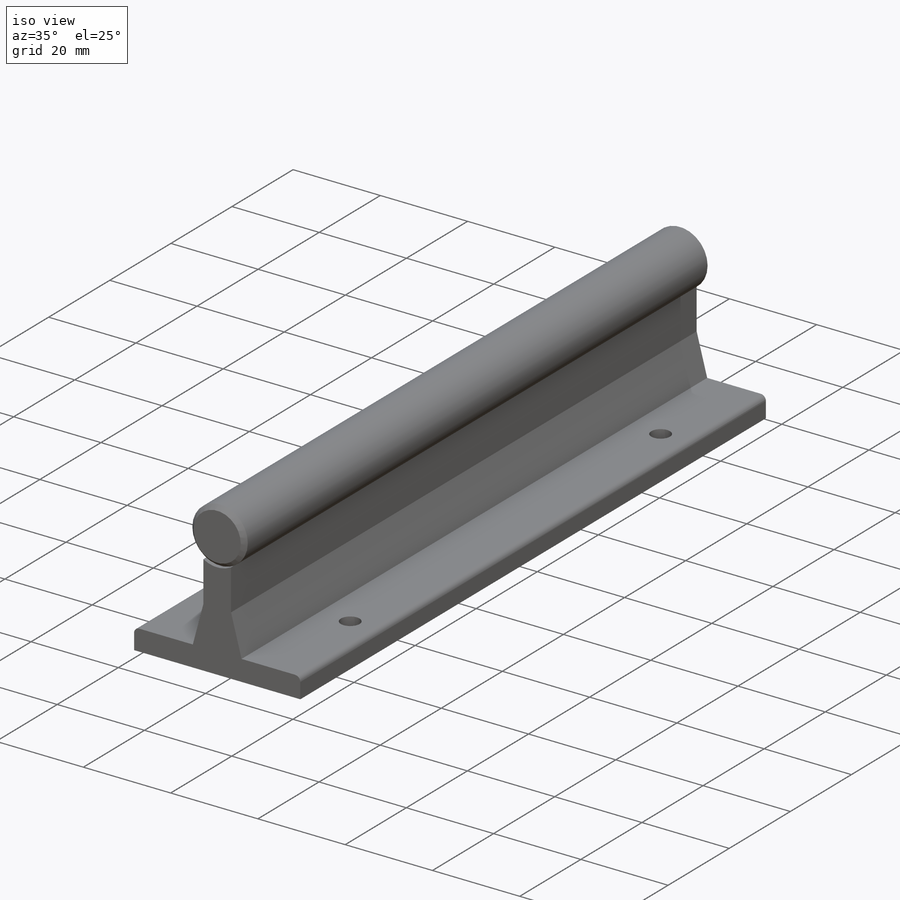
[diagram: iso view]
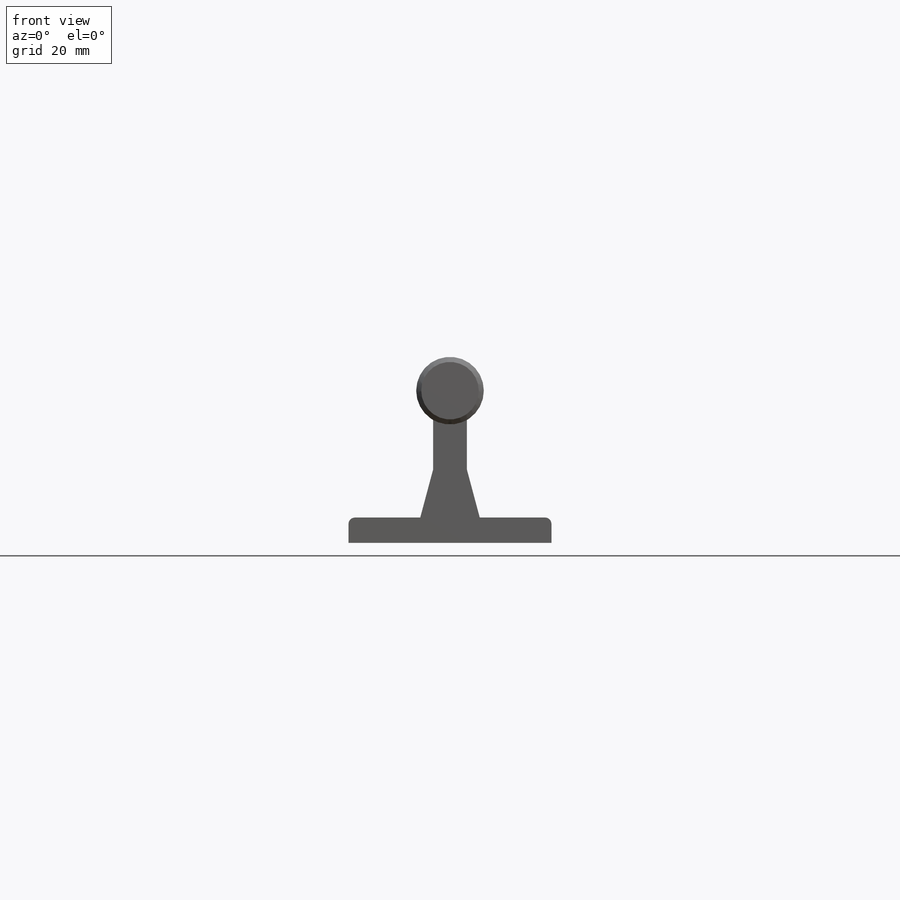
[diagram: front view]
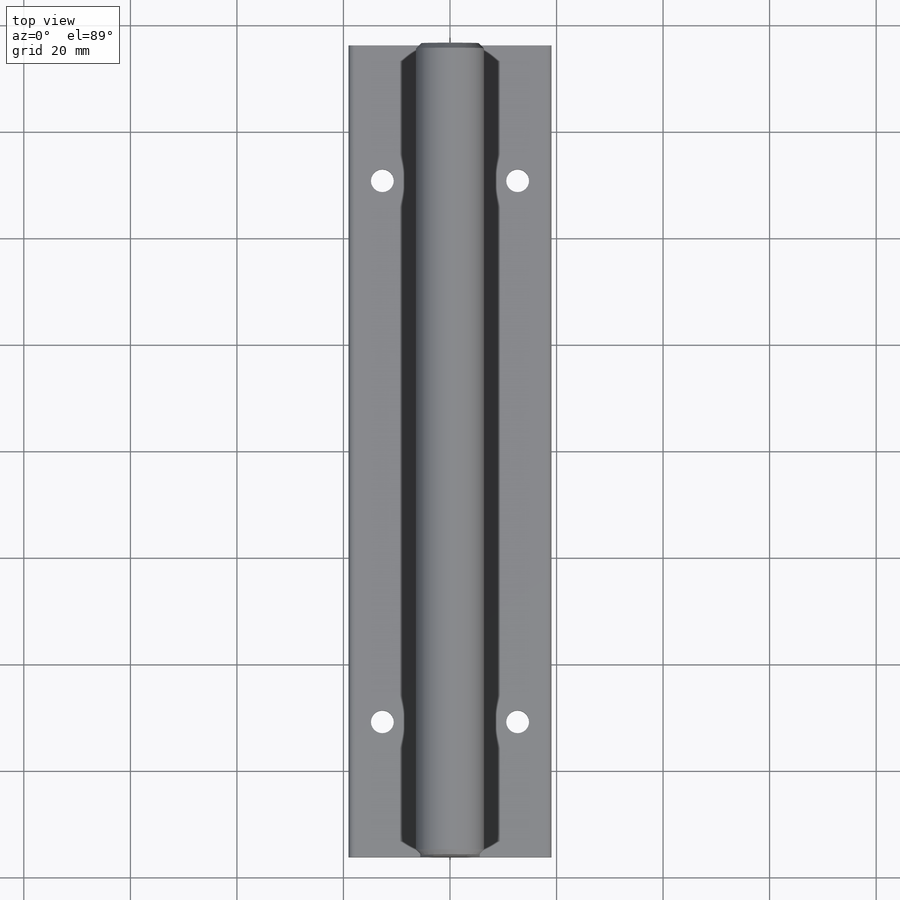
[diagram: top view]
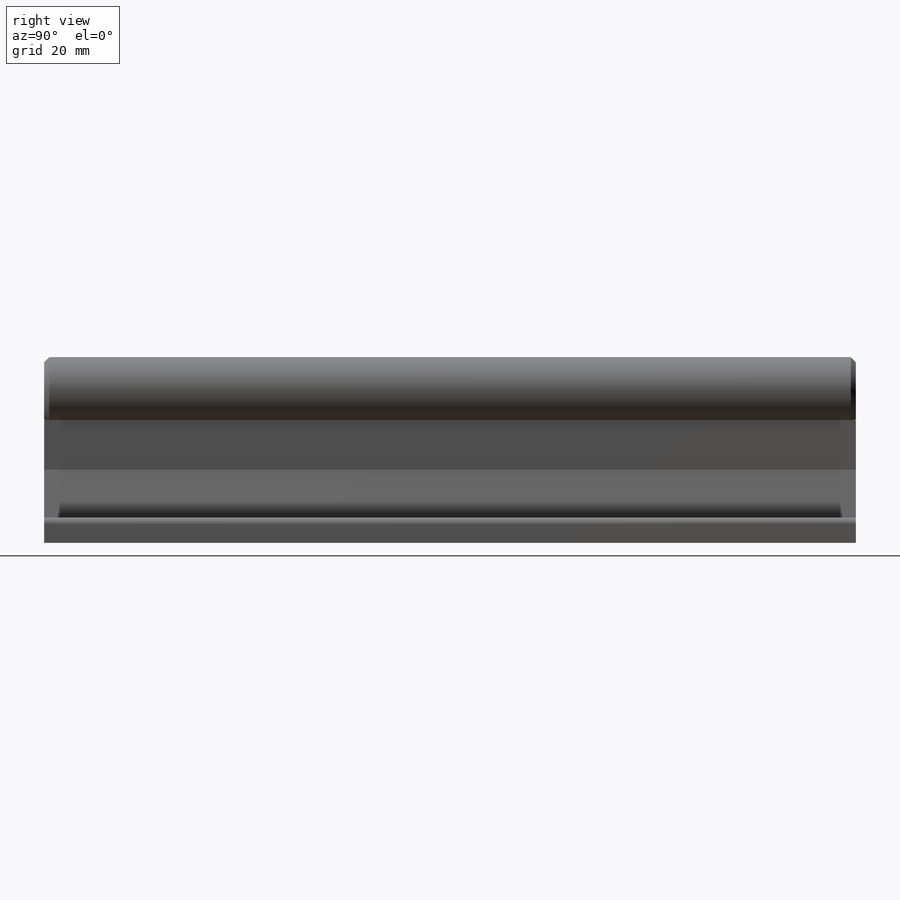
[diagram: right view]
SOLIDWORKS PART (.sldprt)
format: sldprt  version: not decoded by parser v0  size: 330,240 bytes
history: native  units: mm
features: sketch x6, material x1, extrude x1, cut_revolve x1, mirror x1, fillet x1, cut_extrude x1, pattern_linear x1 (+13 scaffold rows collapsed)
feature tree (26):
  scaffold x13  (default folders/planes/origin — collapsed)
  material  "Ceramic Porcelain"
  sketch  "Sketch1"  dims[c1.shaft diam=12.7mm c1.H=4.7625mm c1.D=38.1mm c1.A=28.575mm c1.D5=10.16mm c1.D6=~5.146914mm c2.D6=15.0deg c2.D2=6.35mm]
  extrude  "Extrude1"  Depth=152.4mm length=152.4mm
  sketch  "Sketch3"  dims[c1.D1=~2.795886mm c2.D1=45.0deg c2.D2=0.9525mm]
  cut_revolve  "Cut-Revolve1"  Angle=360deg
  mirror  "Mirror1"
  fillet  "Fillet1"  Radius=1.190625mm
  sketch  "Sketch4"  dims[G=4.2926mm E=25.4mm C=25.4mm]
  cut_extrude  "Extrude3"  [1 undecoded]
  pattern_linear  "LPattern1"  Count1=19 Count2=1 Spacing1=101.6mm Spacing2=2.54mm F=101.6mm
  sketch  "Sketch6"
  sketch  "Sketch7"
  sketch  "Sketch8"
decode coverage: 7 of 12 modeling features carry decoded parameters
note: ~ marks probable driven/reference dimensions
note: 1 parameter value undecoded
note: suppression state not decoded; provenance and decode notes live in map.json
